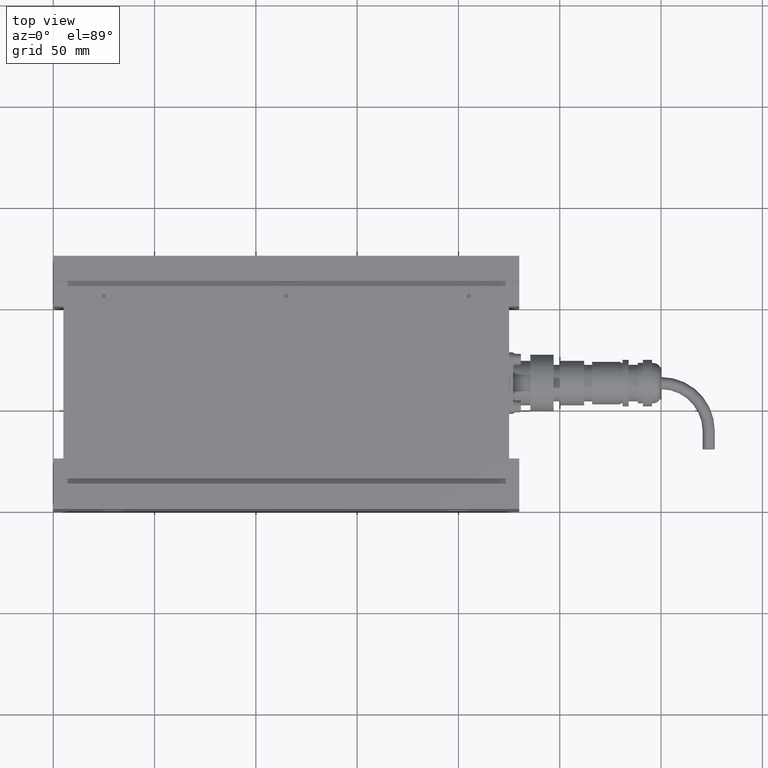
[diagram: clean part render]
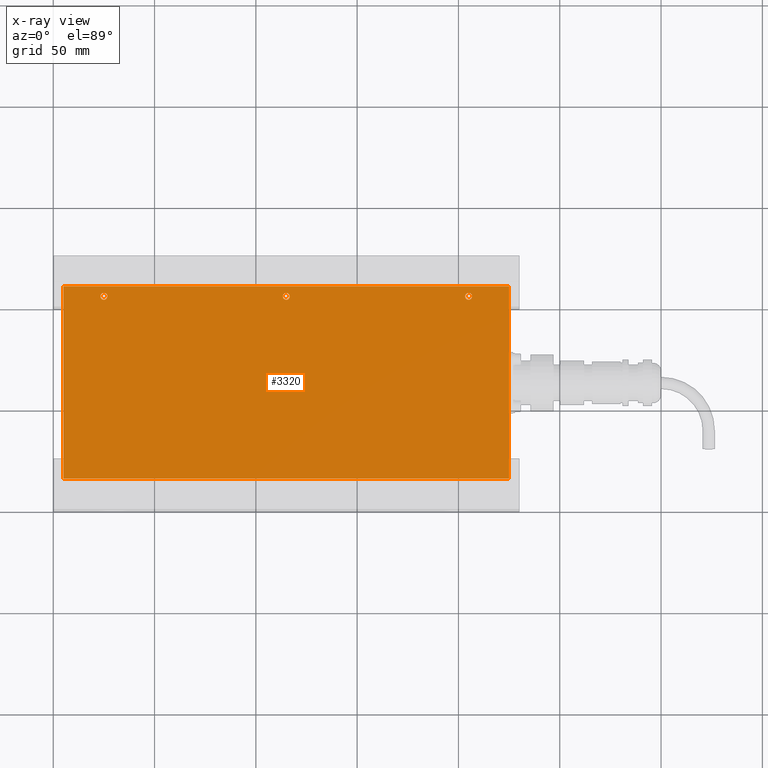
[diagram: x-ray — body ghosted, one internal face saturated and labeled with its STEP entity id]
A machine part, top view, then the same camera in x-ray: the body is ghosted and one INTERNAL B-rep face — a face not visible from any outside direction — is saturated and labeled: STEP entity #3320.
In plain terms, the highlighted planar face has unit normal (0, 0, 1).
Its self-contained STEP definition (entity closure, byte-faithful):
#2658=CARTESIAN_POINT('',(-88.299999999999997,42.500000000000000,-1.0));
#2659=VERTEX_POINT('',#2658);
#2675=CARTESIAN_POINT('',(-91.700000000000003,42.500000000000000,-1.0));
#2676=VERTEX_POINT('',#2675);
#2683=CARTESIAN_POINT('',(-90.0,42.500000000000000,-1.0));
#2684=DIRECTION('',(0.0,0.0,1.0));
#2685=DIRECTION('',(1.0,0.0,0.0));
#2686=AXIS2_PLACEMENT_3D('',#2683,#2684,#2685);
#2687=CIRCLE('',#2686,1.700000000000000);
#2688=EDGE_CURVE('',#2659,#2676,#2687,.T.);
#2910=CARTESIAN_POINT('',(1.700000000000000,42.500000000000000,-1.0));
#2911=VERTEX_POINT('',#2910);
#2919=CARTESIAN_POINT('',(-1.700000000000000,42.500000000000000,-1.0));
#2920=VERTEX_POINT('',#2919);
#2927=CARTESIAN_POINT('',(0.0,42.500000000000000,-1.0));
#2928=DIRECTION('',(0.0,0.0,1.0));
#2929=DIRECTION('',(1.0,0.0,0.0));
#2930=AXIS2_PLACEMENT_3D('',#2927,#2928,#2929);
#2931=CIRCLE('',#2930,1.700000000000000);
#2932=EDGE_CURVE('',#2911,#2920,#2931,.T.);
#2942=CARTESIAN_POINT('',(91.700000000000003,42.500000000000000,-1.0));
#2943=VERTEX_POINT('',#2942);
#2951=CARTESIAN_POINT('',(88.299999999999997,42.500000000000000,-1.0));
#2952=VERTEX_POINT('',#2951);
#2959=CARTESIAN_POINT('',(90.0,42.500000000000000,-1.0));
#2960=DIRECTION('',(0.0,0.0,1.0));
#2961=DIRECTION('',(1.0,0.0,0.0));
#2962=AXIS2_PLACEMENT_3D('',#2959,#2960,#2961);
#2963=CIRCLE('',#2962,1.700000000000000);
#2964=EDGE_CURVE('',#2943,#2952,#2963,.T.);
#2975=CARTESIAN_POINT('',(90.0,42.500000000000000,-1.0));
#2976=DIRECTION('',(0.0,0.0,1.0));
#2977=DIRECTION('',(1.0,0.0,0.0));
#2978=AXIS2_PLACEMENT_3D('',#2975,#2976,#2977);
#2979=CIRCLE('',#2978,1.700000000000000);
#2980=EDGE_CURVE('',#2952,#2943,#2979,.T.);
#2999=CARTESIAN_POINT('',(0.0,42.500000000000000,-1.0));
#3000=DIRECTION('',(0.0,0.0,1.0));
#3001=DIRECTION('',(1.0,0.0,0.0));
#3002=AXIS2_PLACEMENT_3D('',#2999,#3000,#3001);
#3003=CIRCLE('',#3002,1.700000000000000);
#3004=EDGE_CURVE('',#2920,#2911,#3003,.T.);
#3137=CARTESIAN_POINT('',(-90.0,42.500000000000000,-1.0));
#3138=DIRECTION('',(0.0,0.0,1.0));
#3139=DIRECTION('',(1.0,0.0,0.0));
#3140=AXIS2_PLACEMENT_3D('',#3137,#3138,#3139);
#3141=CIRCLE('',#3140,1.700000000000000);
#3142=EDGE_CURVE('',#2676,#2659,#3141,.T.);
#3164=CARTESIAN_POINT('',(-110.0,47.500000000000000,-1.0));
#3165=VERTEX_POINT('',#3164);
#3172=CARTESIAN_POINT('',(-110.0,-47.500000000000000,-1.0));
#3173=VERTEX_POINT('',#3172);
#3174=CARTESIAN_POINT('',(-110.0,47.500000000000000,-1.0));
#3175=DIRECTION('',(0.0,-1.0,0.0));
#3176=VECTOR('',#3175,95.0);
#3177=LINE('',#3174,#3176);
#3178=EDGE_CURVE('',#3165,#3173,#3177,.T.);
#3202=CARTESIAN_POINT('',(110.0,47.500000000000000,-1.0));
#3203=VERTEX_POINT('',#3202);
#3210=CARTESIAN_POINT('',(110.0,47.500000000000000,-1.0));
#3211=DIRECTION('',(-1.0,0.0,0.0));
#3212=VECTOR('',#3211,220.0);
#3213=LINE('',#3210,#3212);
#3214=EDGE_CURVE('',#3203,#3165,#3213,.T.);
#3233=CARTESIAN_POINT('',(110.0,-47.500000000000000,-1.0));
#3234=VERTEX_POINT('',#3233);
#3241=CARTESIAN_POINT('',(110.0,-47.500000000000000,-1.0));
#3242=DIRECTION('',(0.0,1.0,0.0));
#3243=VECTOR('',#3242,95.0);
#3244=LINE('',#3241,#3243);
#3245=EDGE_CURVE('',#3234,#3203,#3244,.T.);
#3263=CARTESIAN_POINT('',(-110.0,-47.500000000000000,-1.0));
#3264=DIRECTION('',(1.0,0.0,0.0));
#3265=VECTOR('',#3264,220.0);
#3266=LINE('',#3263,#3265);
#3267=EDGE_CURVE('',#3173,#3234,#3266,.T.);
#3297=CARTESIAN_POINT('',(0.0,0.0,-1.0));
#3298=DIRECTION('',(0.0,0.0,1.0));
#3299=DIRECTION('',(1.0,0.0,0.0));
#3300=AXIS2_PLACEMENT_3D('',#3297,#3298,#3299);
#3301=PLANE('',#3300);
#3302=ORIENTED_EDGE('',*,*,#3267,.F.);
#3303=ORIENTED_EDGE('',*,*,#3178,.F.);
#3304=ORIENTED_EDGE('',*,*,#3214,.F.);
#3305=ORIENTED_EDGE('',*,*,#3245,.F.);
#3306=EDGE_LOOP('',(#3302,#3303,#3304,#3305));
#3307=FACE_OUTER_BOUND('',#3306,.T.);
#3308=ORIENTED_EDGE('',*,*,#2980,.T.);
#3309=ORIENTED_EDGE('',*,*,#2964,.T.);
#3310=EDGE_LOOP('',(#3308,#3309));
#3311=FACE_BOUND('',#3310,.T.);
#3312=ORIENTED_EDGE('',*,*,#3004,.T.);
#3313=ORIENTED_EDGE('',*,*,#2932,.T.);
#3314=EDGE_LOOP('',(#3312,#3313));
#3315=FACE_BOUND('',#3314,.T.);
#3316=ORIENTED_EDGE('',*,*,#3142,.T.);
#3317=ORIENTED_EDGE('',*,*,#2688,.T.);
#3318=EDGE_LOOP('',(#3316,#3317));
#3319=FACE_BOUND('',#3318,.T.);
#3320=ADVANCED_FACE('',(#3307,#3311,#3315,#3319),#3301,.F.);